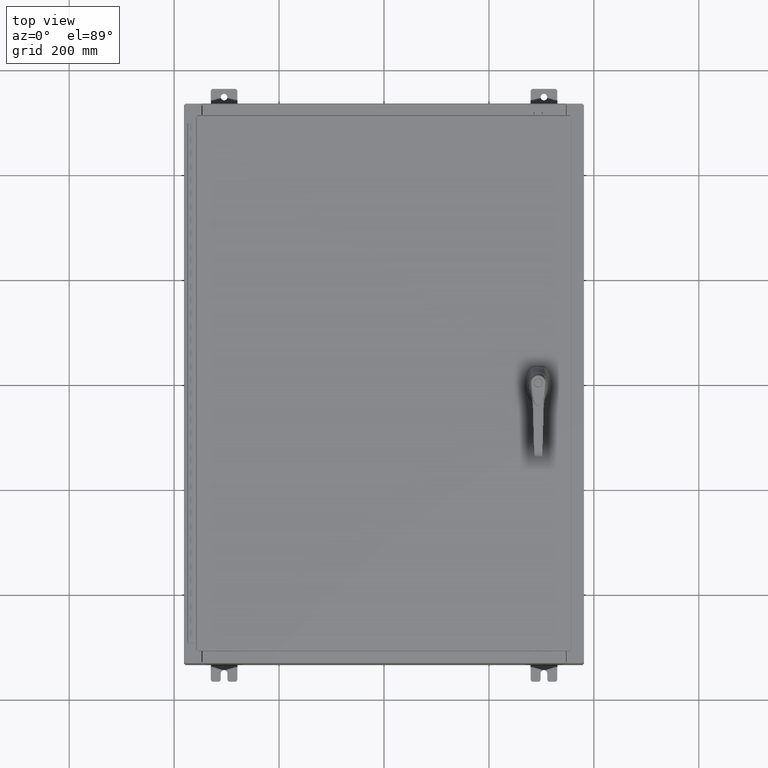
[diagram: clean part render]
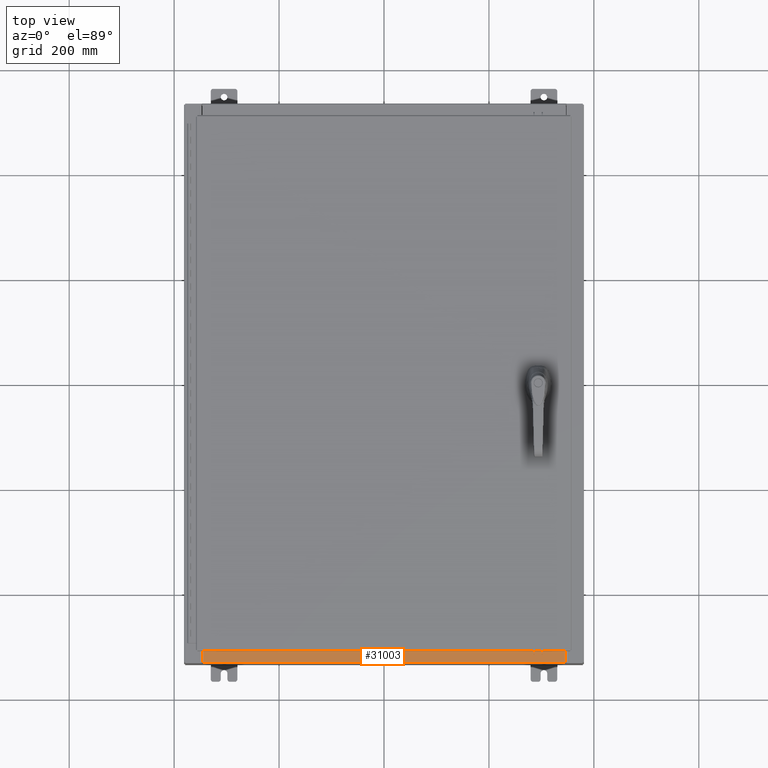
[diagram: same view with one face highlighted and labeled with its STEP entity id]
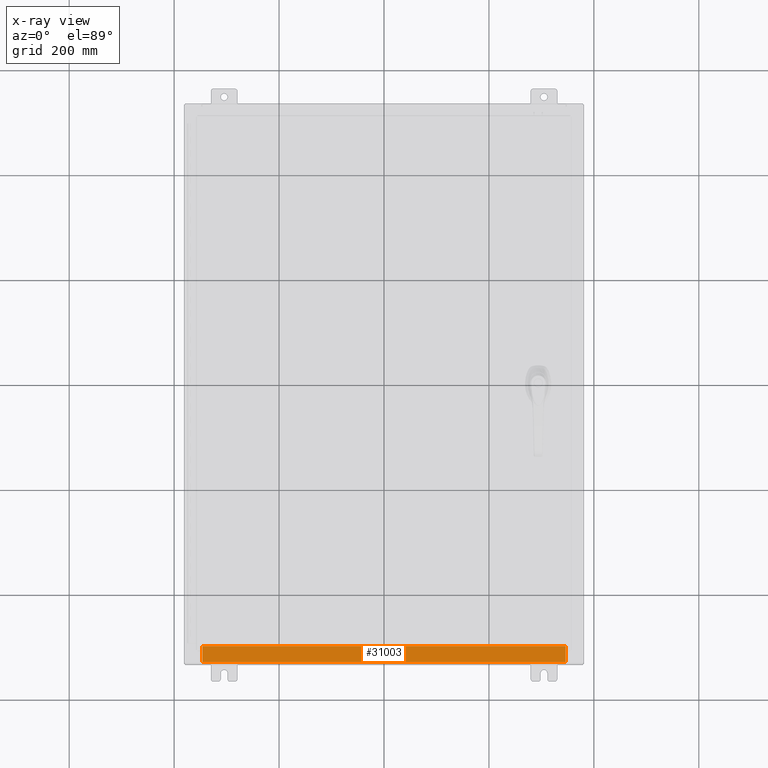
[diagram: x-ray of the same camera — body ghosted, the highlighted face saturated]
A machine part, top view. The second image highlights one B-rep face of the part: STEP entity #31003.
The next image is the same camera in x-ray: the body ghosted, the highlighted face saturated — about 0% of this face is hidden behind the body in this view.
In plain terms, the highlighted planar face has unit normal (-0, -0, 1).
Its self-contained STEP definition (entity closure, byte-faithful):
#992 = VERTEX_POINT ( 'NONE', #60237 ) ;
#4155 = VECTOR ( 'NONE', #103132, 39.37007874015748100 ) ;
#4680 = CARTESIAN_POINT ( 'NONE',  ( -13.63719999999999800, -1.287299999999999200, 4.000000000000004400 ) ) ;
#12492 = ORIENTED_EDGE ( 'NONE', *, *, #79149, .F. ) ;
#14850 = LINE ( 'NONE', #69877, #117348 ) ;
#19471 = CARTESIAN_POINT ( 'NONE',  ( 13.63720000000000400, -0.08769999999999965300, 4.000000000000000000 ) ) ;
#23874 = VERTEX_POINT ( 'NONE', #34647 ) ;
#24479 = CARTESIAN_POINT ( 'NONE',  ( 13.63720000000000400, -1.300299999999999800, 4.000000000000004400 ) ) ;
#30837 = LINE ( 'NONE', #83290, #4155 ) ;
#31003 = ADVANCED_FACE ( 'NONE', ( #51772 ), #34060, .T. ) ;
#34060 = PLANE ( 'NONE',  #108929 ) ;
#34533 = DIRECTION ( 'NONE',  ( -0.0000000000000000000, -1.000000000000000000, 3.566381192773190000E-015 ) ) ;
#34647 = CARTESIAN_POINT ( 'NONE',  ( 13.63720000000000400, -1.287299999999999900, 4.000000000000004400 ) ) ;
#35715 = CARTESIAN_POINT ( 'NONE',  ( 13.63720000000000400, -1.287299999999999900, 4.000000000000003600 ) ) ;
#43205 = VECTOR ( 'NONE', #45677, 39.37007874015748100 ) ;
#45677 = DIRECTION ( 'NONE',  ( -1.000000000000000000, 0.0000000000000000000, 0.0000000000000000000 ) ) ;
#51772 = FACE_OUTER_BOUND ( 'NONE', #63490, .T. ) ;
#60237 = CARTESIAN_POINT ( 'NONE',  ( -13.63719999999999800, -0.08770000000000000000, 4.000000000000000000 ) ) ;
#63490 = EDGE_LOOP ( 'NONE', ( #12492, #66865, #97897, #97644 ) ) ;
#63910 = DIRECTION ( 'NONE',  ( 0.0000000000000000000, -1.000000000000000000, 3.566381192773190000E-015 ) ) ;
#66865 = ORIENTED_EDGE ( 'NONE', *, *, #122017, .F. ) ;
#69877 = CARTESIAN_POINT ( 'NONE',  ( -1.756834753793995900E-018, -0.08770000000000000000, 4.000000000000000900 ) ) ;
#70540 = EDGE_CURVE ( 'NONE', #92312, #23874, #117763, .T. ) ;
#79149 = EDGE_CURVE ( 'NONE', #106505, #992, #30837, .T. ) ;
#79825 = DIRECTION ( 'NONE',  ( -1.000000000000000000, 2.003232330437526000E-017, -7.144290108027600900E-032 ) ) ;
#83290 = CARTESIAN_POINT ( 'NONE',  ( -13.63719999999999800, -0.07469999999999973900, 4.000000000000000000 ) ) ;
#91385 = VECTOR ( 'NONE', #34533, 39.37007874015748100 ) ;
#92312 = VERTEX_POINT ( 'NONE', #19471 ) ;
#97644 = ORIENTED_EDGE ( 'NONE', *, *, #123173, .T. ) ;
#97897 = ORIENTED_EDGE ( 'NONE', *, *, #70540, .F. ) ;
#98877 = LINE ( 'NONE', #35715, #43205 ) ;
#103132 = DIRECTION ( 'NONE',  ( -0.0000000000000000000, 1.000000000000000000, -3.566381192773190000E-015 ) ) ;
#103226 = CARTESIAN_POINT ( 'NONE',  ( 0.0000000000000000000, 1.425992975200418500E-014, 4.000000000000000000 ) ) ;
#106505 = VERTEX_POINT ( 'NONE', #4680 ) ;
#108929 = AXIS2_PLACEMENT_3D ( 'NONE', #103226, #123233, #63910 ) ;
#117348 = VECTOR ( 'NONE', #79825, 39.37007874015748100 ) ;
#117763 = LINE ( 'NONE', #24479, #91385 ) ;
#122017 = EDGE_CURVE ( 'NONE', #23874, #106505, #98877, .T. ) ;
#123173 = EDGE_CURVE ( 'NONE', #92312, #992, #14850, .T. ) ;
#123233 = DIRECTION ( 'NONE',  ( 0.0000000000000000000, 3.566381192773190000E-015, 1.000000000000000000 ) ) ;